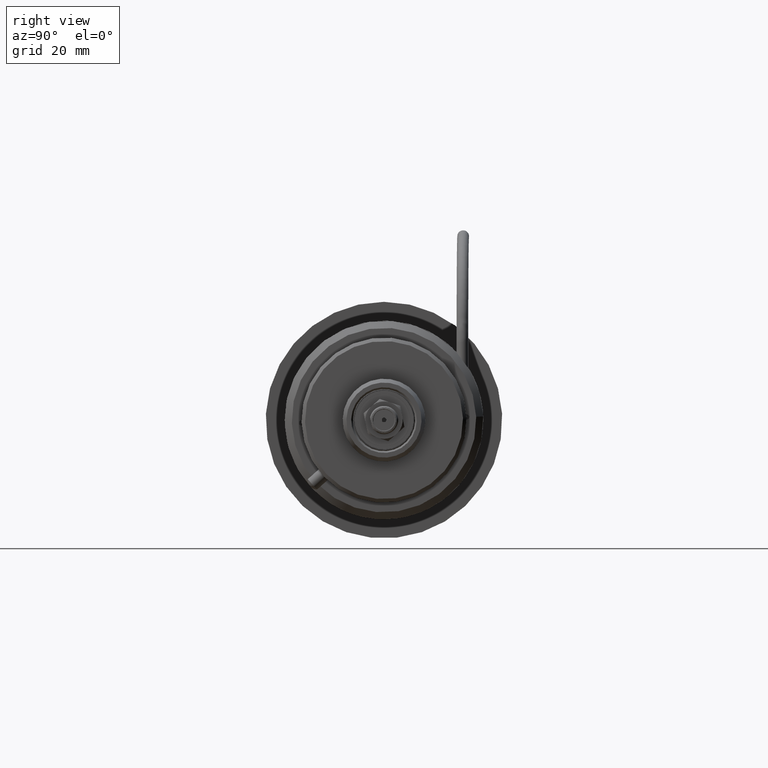
[diagram: clean part render]
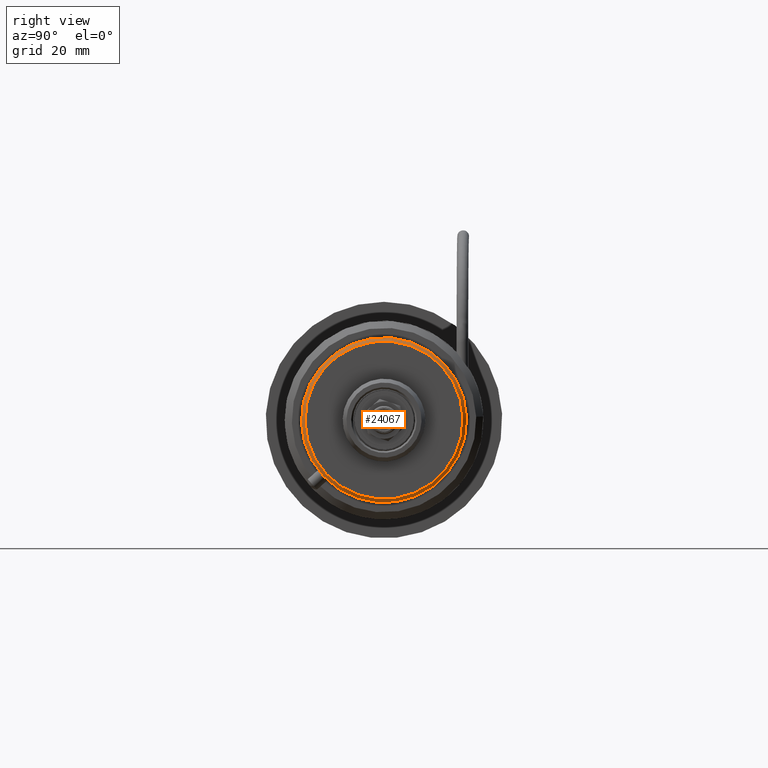
[diagram: same view with one face highlighted and labeled with its STEP entity id]
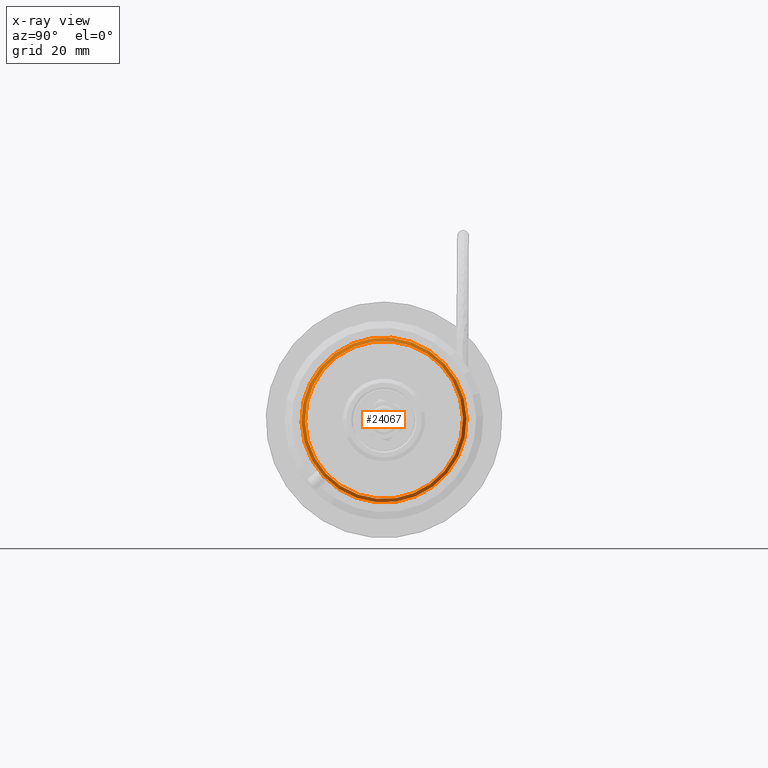
[diagram: x-ray of the same camera — body ghosted, the highlighted face saturated]
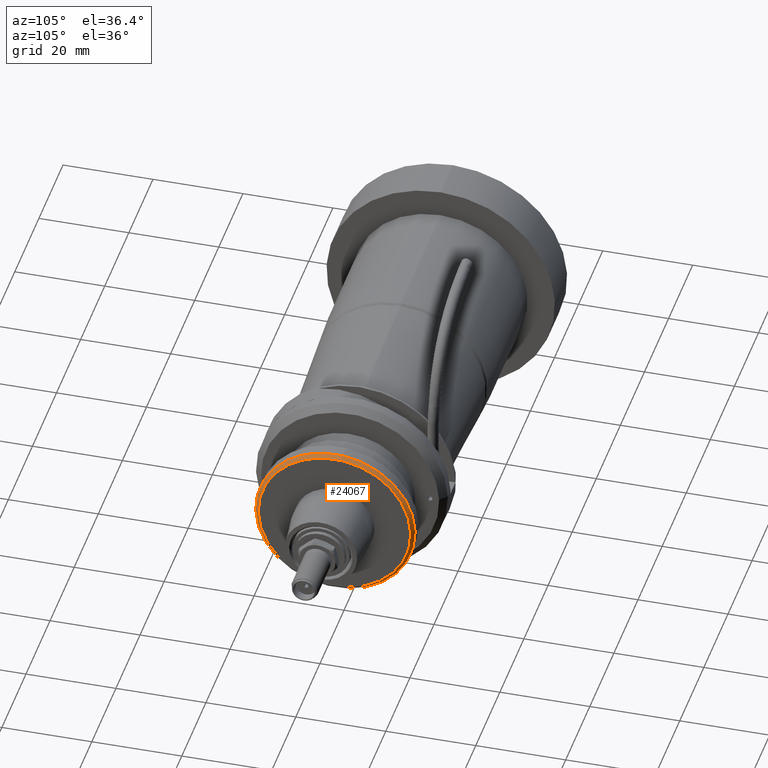
[diagram: same view with one face highlighted and labeled with its STEP entity id]
A machine part, right view. The second image highlights one B-rep face of the part: STEP entity #24067.
The next image is the same camera in x-ray: the body ghosted, the highlighted face saturated — about 0% of this face is hidden behind the body in this view.
A second angle (auxiliary view) of the same face is appended — the face is thin or edge-on in the first view.
In plain terms, the highlighted conical surface has half-angle 45 deg.
Its self-contained STEP definition (entity closure, byte-faithful):
#3224 = ORIENTED_EDGE ( 'NONE', *, *, #37689, .F. ) ;
#5443 = CIRCLE ( 'NONE', #27950, 16.96719999999999800 ) ;
#14555 = DIRECTION ( 'NONE',  ( 0.0000000000000000000, 0.09450291689325295000, 0.9955245846781820600 ) ) ;
#18582 = VERTEX_POINT ( 'NONE', #41011 ) ;
#19226 = DIRECTION ( 'NONE',  ( -1.000000000000000000, 0.0000000000000000000, 0.0000000000000000000 ) ) ;
#19570 = AXIS2_PLACEMENT_3D ( 'NONE', #51352, #19226, #14555 ) ;
#23246 = DIRECTION ( 'NONE',  ( -1.000000000000000000, 0.0000000000000000000, 0.0000000000000000000 ) ) ;
#23380 = DIRECTION ( 'NONE',  ( 1.000000000000000000, 0.0000000000000000000, 0.0000000000000000000 ) ) ;
#23713 = EDGE_CURVE ( 'NONE', #62598, #62598, #44870, .T. ) ;
#24067 = ADVANCED_FACE ( 'NONE', ( #65039, #47487 ), #65678, .T. ) ;
#27950 = AXIS2_PLACEMENT_3D ( 'NONE', #54794, #23380, #60046 ) ;
#29591 = EDGE_LOOP ( 'NONE', ( #3224 ) ) ;
#30576 = EDGE_LOOP ( 'NONE', ( #53238 ) ) ;
#37689 = EDGE_CURVE ( 'NONE', #18582, #18582, #5443, .T. ) ;
#41011 = CARTESIAN_POINT ( 'NONE',  ( 86.12414966030979700, 1.131908317993502300, 14.17207732601392500 ) ) ;
#44870 = CIRCLE ( 'NONE', #63033, 17.72920000000000200 ) ;
#47487 = FACE_OUTER_BOUND ( 'NONE', #30576, .T. ) ;
#51352 = CARTESIAN_POINT ( 'NONE',  ( 85.36214966030982500, -0.4715415735176992100, -2.719187407137725100 ) ) ;
#53238 = ORIENTED_EDGE ( 'NONE', *, *, #23713, .F. ) ;
#54671 = CARTESIAN_POINT ( 'NONE',  ( 85.36214966030982500, -0.4715415735176992100, -2.719187407137725100 ) ) ;
#54794 = CARTESIAN_POINT ( 'NONE',  ( 86.12414966030979700, -0.4715415735176992100, -2.719187407137725100 ) ) ;
#59919 = DIRECTION ( 'NONE',  ( 0.0000000000000000000, 0.09450291689325295000, 0.9955245846781820600 ) ) ;
#60046 = DIRECTION ( 'NONE',  ( 0.0000000000000000000, 0.09450291689325296400, 0.9955245846781821700 ) ) ;
#60930 = CARTESIAN_POINT ( 'NONE',  ( 85.36214966030982500, 1.203919540666161400, 14.93066705953870300 ) ) ;
#62598 = VERTEX_POINT ( 'NONE', #60930 ) ;
#63033 = AXIS2_PLACEMENT_3D ( 'NONE', #54671, #23246, #59919 ) ;
#65039 = FACE_BOUND ( 'NONE', #29591, .T. ) ;
#65678 = CONICAL_SURFACE ( 'NONE', #19570, 17.72920000000000200, 0.7853981633974482800 ) ;